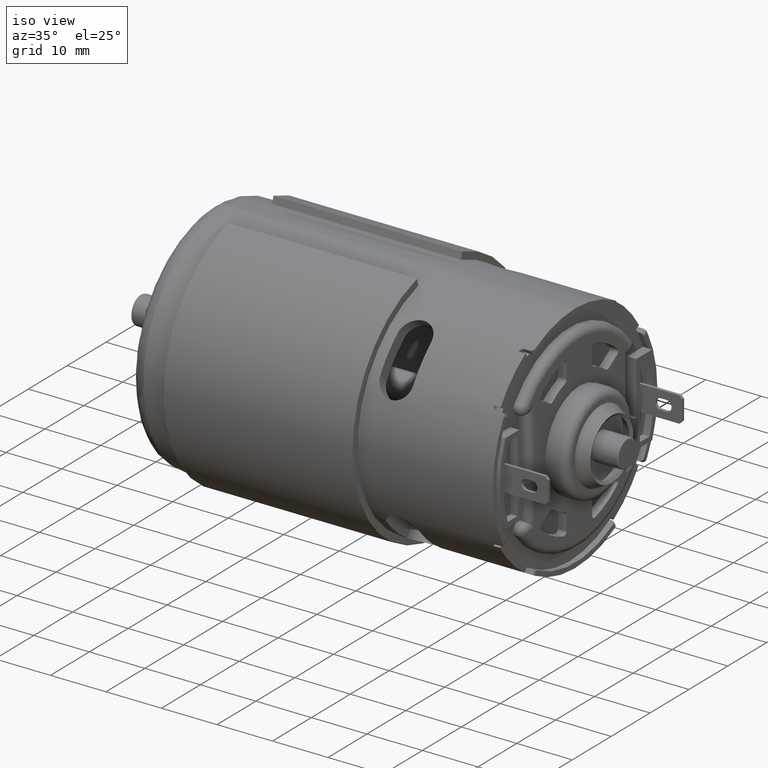
[diagram: clean part render]
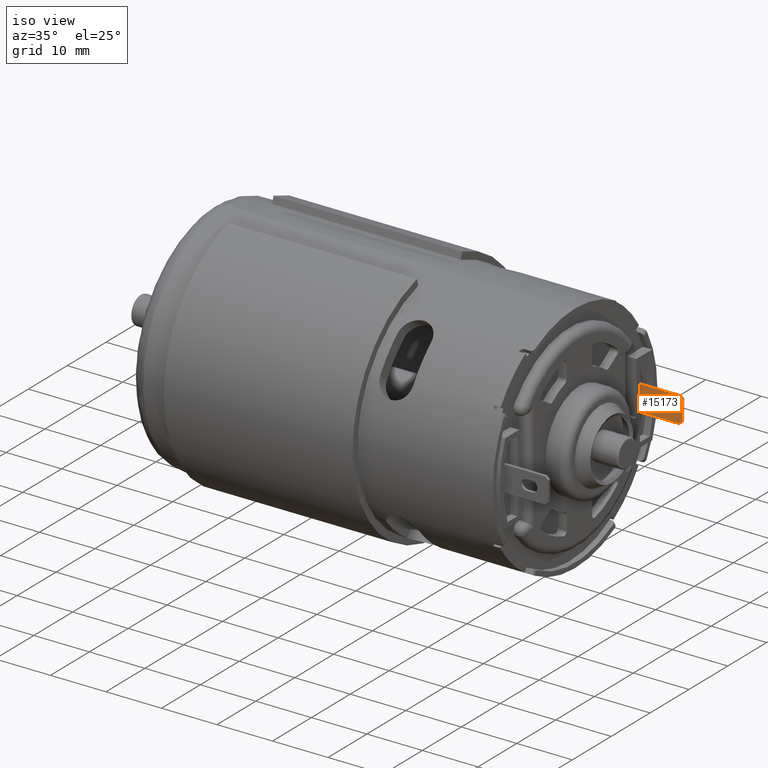
[diagram: same view with one face highlighted and labeled with its STEP entity id]
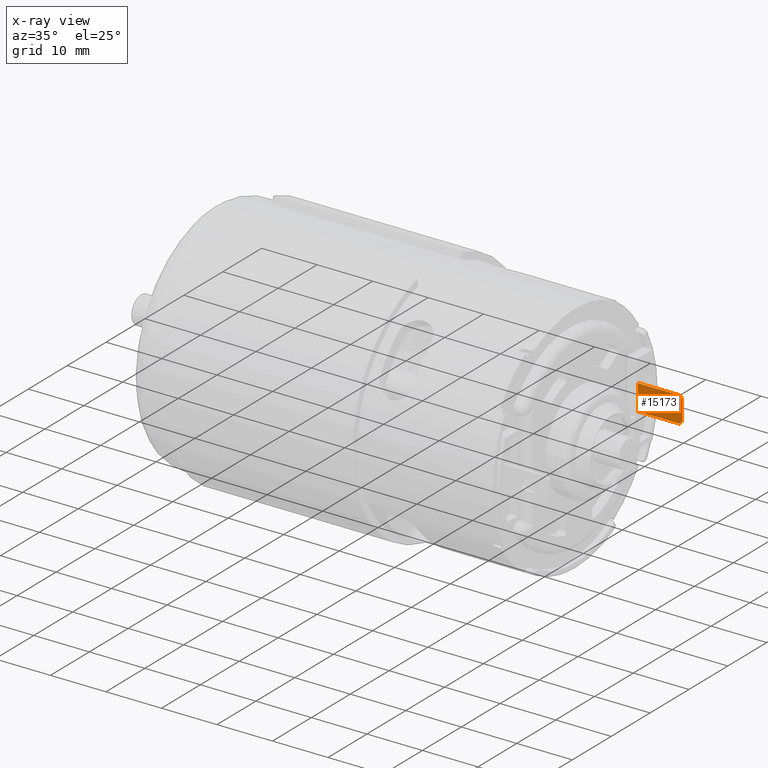
[diagram: x-ray of the same camera — body ghosted, the highlighted face saturated]
A machine part, iso view. The second image highlights one B-rep face of the part: STEP entity #15173.
The next image is the same camera in x-ray: the body ghosted, the highlighted face saturated — about 0% of this face is hidden behind the body in this view.
In plain terms, the highlighted planar face has unit normal (0, 1, -0).
Its self-contained STEP definition (entity closure, byte-faithful):
#111 = VECTOR ( 'NONE', #18314, 39.37007874015748143 ) ;
#401 = DIRECTION ( 'NONE',  ( 0.0000000000000000000, 0.0000000000000000000, 1.000000000000000000 ) ) ;
#817 = VERTEX_POINT ( 'NONE', #12516 ) ;
#1047 = DIRECTION ( 'NONE',  ( -0.0000000000000000000, -1.000000000000000000, 0.0000000000000000000 ) ) ;
#1145 = EDGE_CURVE ( 'NONE', #6083, #12866, #13450, .T. ) ;
#1418 = CARTESIAN_POINT ( 'NONE',  ( 2.716662204724409335, 0.6692913385826771977, 0.03750000000000001943 ) ) ;
#1796 = PLANE ( 'NONE',  #5840 ) ;
#1929 = VERTEX_POINT ( 'NONE', #18679 ) ;
#2510 = ORIENTED_EDGE ( 'NONE', *, *, #1145, .T. ) ;
#2576 = EDGE_CURVE ( 'NONE', #4335, #817, #12081, .T. ) ;
#3106 = ORIENTED_EDGE ( 'NONE', *, *, #17372, .F. ) ;
#3216 = DIRECTION ( 'NONE',  ( 1.000000000000000000, -0.0000000000000000000, -0.0000000000000000000 ) ) ;
#3236 = VECTOR ( 'NONE', #5776, 39.37007874015748143 ) ;
#3846 = ORIENTED_EDGE ( 'NONE', *, *, #16141, .T. ) ;
#4335 = VERTEX_POINT ( 'NONE', #7658 ) ;
#4430 = ORIENTED_EDGE ( 'NONE', *, *, #9654, .F. ) ;
#4468 = VECTOR ( 'NONE', #18044, 39.37007874015748854 ) ;
#4513 = AXIS2_PLACEMENT_3D ( 'NONE', #9682, #1047, #11114 ) ;
#4572 = CIRCLE ( 'NONE', #4513, 0.03749999999999999167 ) ;
#4576 = DIRECTION ( 'NONE',  ( 0.7071067811865474617, 0.0000000000000000000, 0.7071067811865474617 ) ) ;
#4675 = ORIENTED_EDGE ( 'NONE', *, *, #14008, .F. ) ;
#5477 = EDGE_CURVE ( 'NONE', #9139, #8583, #12562, .T. ) ;
#5773 = CIRCLE ( 'NONE', #15706, 0.03749999999999999861 ) ;
#5776 = DIRECTION ( 'NONE',  ( -1.000000000000000000, 0.0000000000000000000, 4.268512490100456762E-16 ) ) ;
#5840 = AXIS2_PLACEMENT_3D ( 'NONE', #17657, #9047, #401 ) ;
#5852 = VECTOR ( 'NONE', #4576, 39.37007874015748854 ) ;
#6083 = VERTEX_POINT ( 'NONE', #9136 ) ;
#6150 = VERTEX_POINT ( 'NONE', #14895 ) ;
#6270 = LINE ( 'NONE', #11807, #17727 ) ;
#6680 = DIRECTION ( 'NONE',  ( -0.0000000000000000000, -1.000000000000000000, 0.0000000000000000000 ) ) ;
#6898 = ORIENTED_EDGE ( 'NONE', *, *, #12608, .T. ) ;
#6916 = DIRECTION ( 'NONE',  ( 1.000000000000000000, 0.0000000000000000000, 0.0000000000000000000 ) ) ;
#7564 = CARTESIAN_POINT ( 'NONE',  ( 2.554125984251968351, 0.6692913385826771977, -0.09055118110236221041 ) ) ;
#7658 = CARTESIAN_POINT ( 'NONE',  ( 2.869162204724409193, 0.6692913385826771977, 0.07055118110236296980 ) ) ;
#7844 = CARTESIAN_POINT ( 'NONE',  ( 2.554125984251968351, 0.6692913385826771977, 0.09055118110236221041 ) ) ;
#7911 = VERTEX_POINT ( 'NONE', #17409 ) ;
#7977 = CARTESIAN_POINT ( 'NONE',  ( 2.849162204724410064, 0.6692913385826771977, 0.09055118110236221041 ) ) ;
#8410 = CARTESIAN_POINT ( 'NONE',  ( 2.554125984251968351, 0.6692913385826771977, -0.09055118110236221041 ) ) ;
#8583 = VERTEX_POINT ( 'NONE', #7564 ) ;
#8763 = VECTOR ( 'NONE', #12725, 39.37007874015748143 ) ;
#8786 = LINE ( 'NONE', #9896, #13053 ) ;
#8929 = ORIENTED_EDGE ( 'NONE', *, *, #5477, .T. ) ;
#8985 = ORIENTED_EDGE ( 'NONE', *, *, #11613, .F. ) ;
#9047 = DIRECTION ( 'NONE',  ( 0.0000000000000000000, 1.000000000000000000, -0.0000000000000000000 ) ) ;
#9089 = VERTEX_POINT ( 'NONE', #17801 ) ;
#9136 = CARTESIAN_POINT ( 'NONE',  ( 2.849162204724410064, 0.6692913385826771977, -0.09055118110236221041 ) ) ;
#9139 = VERTEX_POINT ( 'NONE', #7844 ) ;
#9654 = EDGE_CURVE ( 'NONE', #6150, #7911, #4572, .T. ) ;
#9682 = CARTESIAN_POINT ( 'NONE',  ( 2.756662204724408927, 0.6692913385826771977, 1.204300183691968675E-17 ) ) ;
#9896 = CARTESIAN_POINT ( 'NONE',  ( 2.716662204724409335, 0.6692913385826771977, -0.03749999999999998473 ) ) ;
#10988 = EDGE_LOOP ( 'NONE', ( #16932, #8929, #6898, #2510, #3846, #16302 ) ) ;
#11114 = DIRECTION ( 'NONE',  ( 0.0000000000000000000, 0.0000000000000000000, 1.000000000000000000 ) ) ;
#11422 = VECTOR ( 'NONE', #13412, 39.37007874015748143 ) ;
#11590 = LINE ( 'NONE', #16859, #111 ) ;
#11613 = EDGE_CURVE ( 'NONE', #9089, #6150, #8786, .T. ) ;
#11807 = CARTESIAN_POINT ( 'NONE',  ( 2.309956924389617416, 0.6692913385826771977, -0.09055118110236221041 ) ) ;
#12081 = LINE ( 'NONE', #7977, #4468 ) ;
#12516 = CARTESIAN_POINT ( 'NONE',  ( 2.849162204724410064, 0.6692913385826771977, 0.09055118110236221041 ) ) ;
#12562 = LINE ( 'NONE', #8410, #8763 ) ;
#12608 = EDGE_CURVE ( 'NONE', #8583, #6083, #6270, .T. ) ;
#12725 = DIRECTION ( 'NONE',  ( 0.0000000000000000000, -0.0000000000000000000, -1.000000000000000000 ) ) ;
#12866 = VERTEX_POINT ( 'NONE', #16699 ) ;
#13053 = VECTOR ( 'NONE', #6916, 39.37007874015748143 ) ;
#13276 = EDGE_CURVE ( 'NONE', #9139, #817, #11590, .T. ) ;
#13412 = DIRECTION ( 'NONE',  ( 0.0000000000000000000, 0.0000000000000000000, 1.000000000000000000 ) ) ;
#13450 = LINE ( 'NONE', #14962, #5852 ) ;
#13941 = FACE_BOUND ( 'NONE', #18237, .T. ) ;
#14008 = EDGE_CURVE ( 'NONE', #7911, #1929, #18540, .T. ) ;
#14726 = CARTESIAN_POINT ( 'NONE',  ( 2.869162204724409193, 0.6692913385826771977, 0.09055118110236221041 ) ) ;
#14895 = CARTESIAN_POINT ( 'NONE',  ( 2.756662204724408927, 0.6692913385826771977, -0.03749999999999997780 ) ) ;
#14962 = CARTESIAN_POINT ( 'NONE',  ( 2.849162204724410064, 0.6692913385826771977, -0.09055118110236221041 ) ) ;
#15173 = ADVANCED_FACE ( 'NONE', ( #13941, #15269 ), #1796, .F. ) ;
#15220 = LINE ( 'NONE', #14726, #11422 ) ;
#15228 = CARTESIAN_POINT ( 'NONE',  ( 2.716662204724409335, 0.6692913385826771977, 1.757166373999801780E-17 ) ) ;
#15269 = FACE_OUTER_BOUND ( 'NONE', #10988, .T. ) ;
#15706 = AXIS2_PLACEMENT_3D ( 'NONE', #15228, #6680, #16704 ) ;
#16141 = EDGE_CURVE ( 'NONE', #12866, #4335, #15220, .T. ) ;
#16302 = ORIENTED_EDGE ( 'NONE', *, *, #2576, .T. ) ;
#16699 = CARTESIAN_POINT ( 'NONE',  ( 2.869162204724409193, 0.6692913385826771977, -0.07055118110236296980 ) ) ;
#16704 = DIRECTION ( 'NONE',  ( 0.0000000000000000000, 0.0000000000000000000, 1.000000000000000000 ) ) ;
#16859 = CARTESIAN_POINT ( 'NONE',  ( 2.309956924389617416, 0.6692913385826771977, 0.09055118110236221041 ) ) ;
#16932 = ORIENTED_EDGE ( 'NONE', *, *, #13276, .F. ) ;
#17372 = EDGE_CURVE ( 'NONE', #1929, #9089, #5773, .T. ) ;
#17409 = CARTESIAN_POINT ( 'NONE',  ( 2.756662204724408927, 0.6692913385826771977, 0.03749999999999999167 ) ) ;
#17657 = CARTESIAN_POINT ( 'NONE',  ( 2.309956924389617416, 0.6692913385826771977, -0.09055118110236221041 ) ) ;
#17727 = VECTOR ( 'NONE', #3216, 39.37007874015748143 ) ;
#17801 = CARTESIAN_POINT ( 'NONE',  ( 2.716662204724409335, 0.6692913385826771977, -0.03749999999999998473 ) ) ;
#18044 = DIRECTION ( 'NONE',  ( -0.7071067811865474617, 0.0000000000000000000, 0.7071067811865474617 ) ) ;
#18237 = EDGE_LOOP ( 'NONE', ( #8985, #3106, #4675, #4430 ) ) ;
#18314 = DIRECTION ( 'NONE',  ( 1.000000000000000000, -0.0000000000000000000, -0.0000000000000000000 ) ) ;
#18540 = LINE ( 'NONE', #1418, #3236 ) ;
#18679 = CARTESIAN_POINT ( 'NONE',  ( 2.716662204724409335, 0.6692913385826771977, 0.03750000000000001943 ) ) ;